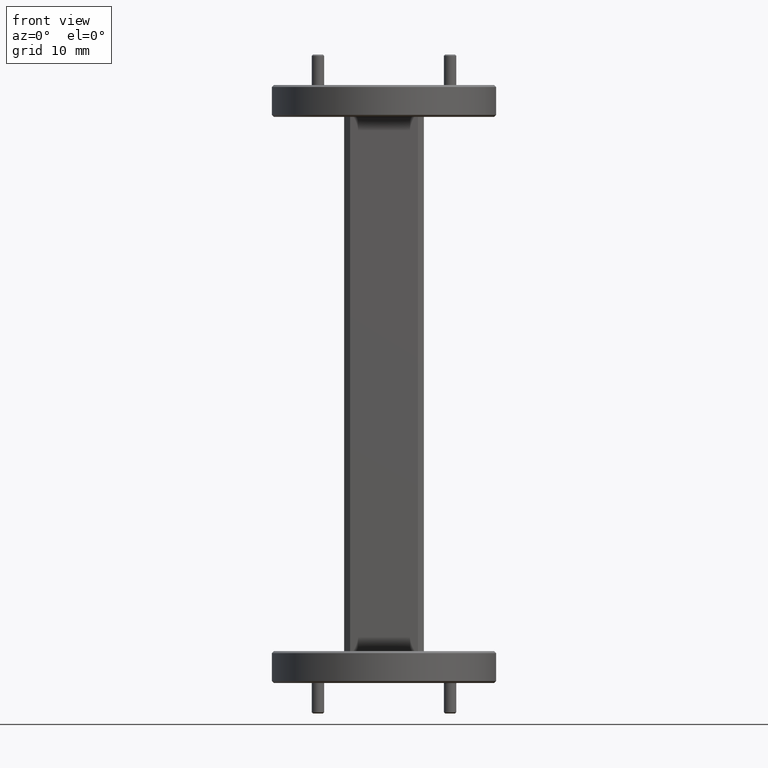
[diagram: clean part render]
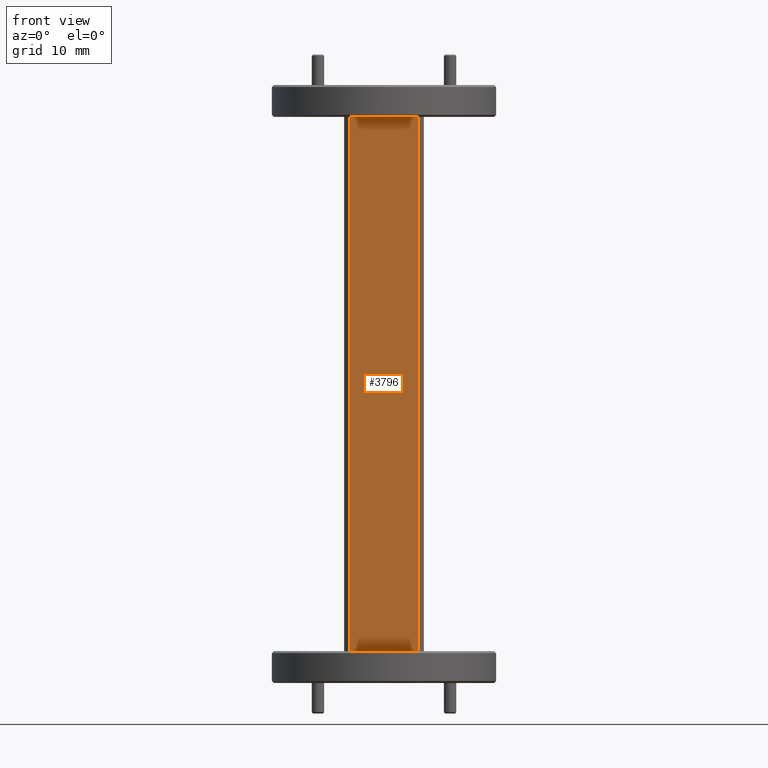
[diagram: same view with one face highlighted and labeled with its STEP entity id]
A machine part, front view. The second image highlights one B-rep face of the part: STEP entity #3796.
In plain terms, the highlighted planar face has unit normal (0, 1, 0).
Its self-contained STEP definition (entity closure, byte-faithful):
#270 = DIRECTION ( 'NONE',  ( 0.000000000000000000, 0.000000000000000000, -1.000000000000000000 ) ) ;
#318 = CARTESIAN_POINT ( 'NONE',  ( -0.1700000000000000677, -0.2000000000000000111, 1.500000000000000222 ) ) ;
#455 = DIRECTION ( 'NONE',  ( -1.000000000000000000, 0.000000000000000000, 0.000000000000000000 ) ) ;
#857 = AXIS2_PLACEMENT_3D ( 'NONE', #7901, #1036, #9298 ) ;
#975 = CARTESIAN_POINT ( 'NONE',  ( -0.1700000000000000677, -0.2000000000000000111, 1.340000000000000080 ) ) ;
#1036 = DIRECTION ( 'NONE',  ( 0.000000000000000000, 1.000000000000000000, 0.000000000000000000 ) ) ;
#1125 = DIRECTION ( 'NONE',  ( 1.000000000000000000, 0.000000000000000000, 0.000000000000000000 ) ) ;
#1148 = CARTESIAN_POINT ( 'NONE',  ( -0.2000000000000000111, -0.2000000000000000111, -1.340000000000000080 ) ) ;
#1434 = EDGE_CURVE ( 'NONE', #3587, #8807, #7274, .T. ) ;
#1788 = PLANE ( 'NONE',  #857 ) ;
#1809 = VECTOR ( 'NONE', #455, 39.37007874015748143 ) ;
#2410 = ORIENTED_EDGE ( 'NONE', *, *, #3003, .T. ) ;
#2515 = ORIENTED_EDGE ( 'NONE', *, *, #4731, .F. ) ;
#2627 = LINE ( 'NONE', #4970, #8144 ) ;
#3003 = EDGE_CURVE ( 'NONE', #6187, #8807, #7878, .T. ) ;
#3066 = EDGE_LOOP ( 'NONE', ( #2515, #2410, #3951, #7646 ) ) ;
#3587 = VERTEX_POINT ( 'NONE', #9866 ) ;
#3796 = ADVANCED_FACE ( 'NONE', ( #9348 ), #1788, .F. ) ;
#3951 = ORIENTED_EDGE ( 'NONE', *, *, #1434, .F. ) ;
#4731 = EDGE_CURVE ( 'NONE', #6187, #7573, #2627, .T. ) ;
#4970 = CARTESIAN_POINT ( 'NONE',  ( -0.2000000000000000111, -0.2000000000000000111, 1.340000000000000080 ) ) ;
#5041 = VECTOR ( 'NONE', #270, 39.37007874015748143 ) ;
#5164 = CARTESIAN_POINT ( 'NONE',  ( 0.1699999999999999845, -0.2000000000000000111, 1.340000000000000080 ) ) ;
#5876 = DIRECTION ( 'NONE',  ( 0.000000000000000000, 0.000000000000000000, 1.000000000000000000 ) ) ;
#6187 = VERTEX_POINT ( 'NONE', #975 ) ;
#6347 = VECTOR ( 'NONE', #5876, 39.37007874015748143 ) ;
#6892 = CARTESIAN_POINT ( 'NONE',  ( -0.1700000000000000677, -0.2000000000000000111, -1.340000000000000080 ) ) ;
#7274 = LINE ( 'NONE', #1148, #1809 ) ;
#7290 = LINE ( 'NONE', #7387, #6347 ) ;
#7387 = CARTESIAN_POINT ( 'NONE',  ( 0.1699999999999999845, -0.2000000000000000111, 1.500000000000000222 ) ) ;
#7502 = EDGE_CURVE ( 'NONE', #3587, #7573, #7290, .T. ) ;
#7573 = VERTEX_POINT ( 'NONE', #5164 ) ;
#7646 = ORIENTED_EDGE ( 'NONE', *, *, #7502, .T. ) ;
#7878 = LINE ( 'NONE', #318, #5041 ) ;
#7901 = CARTESIAN_POINT ( 'NONE',  ( -0.2000000000000000111, -0.2000000000000000111, 1.500000000000000222 ) ) ;
#8144 = VECTOR ( 'NONE', #1125, 39.37007874015748143 ) ;
#8807 = VERTEX_POINT ( 'NONE', #6892 ) ;
#9298 = DIRECTION ( 'NONE',  ( 0.000000000000000000, -0.000000000000000000, 1.000000000000000000 ) ) ;
#9348 = FACE_OUTER_BOUND ( 'NONE', #3066, .T. ) ;
#9866 = CARTESIAN_POINT ( 'NONE',  ( 0.1699999999999999845, -0.2000000000000000111, -1.340000000000000080 ) ) ;